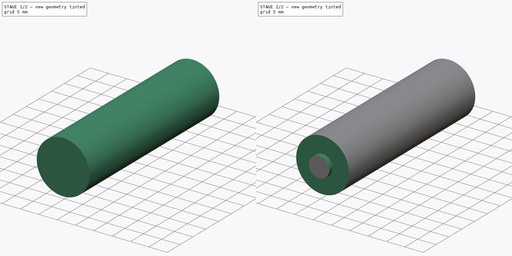
[diagram: build sequence overview — one tinted view per stage of 2, left to right]
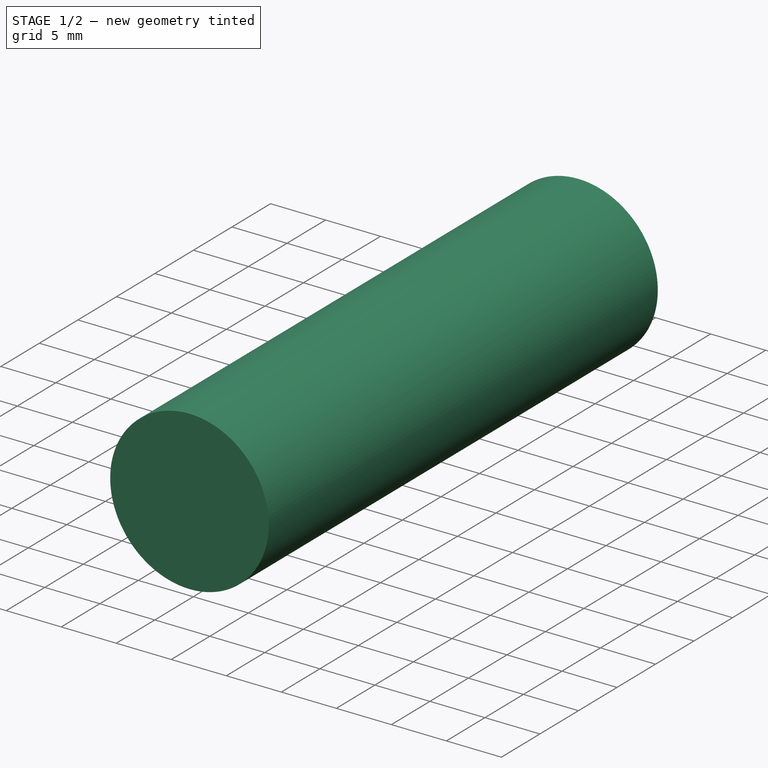
[diagram: stage 1 of 2 — iso view after this stage's code; geometry added in this stage tinted green]
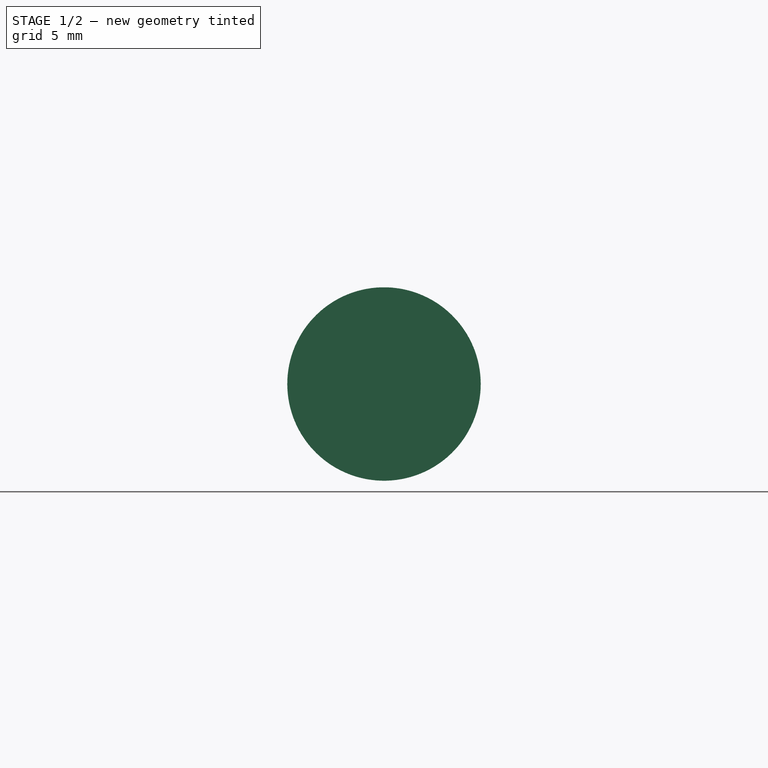
[diagram: stage 1 of 2 — front view after this stage's code; geometry added in this stage tinted green]
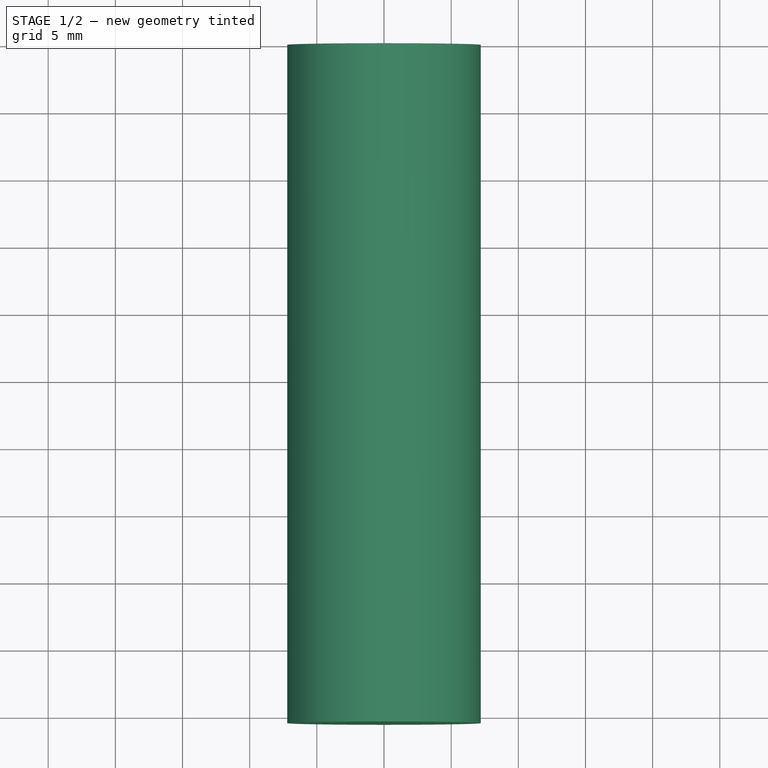
[diagram: stage 1 of 2 — top view after this stage's code; geometry added in this stage tinted green]
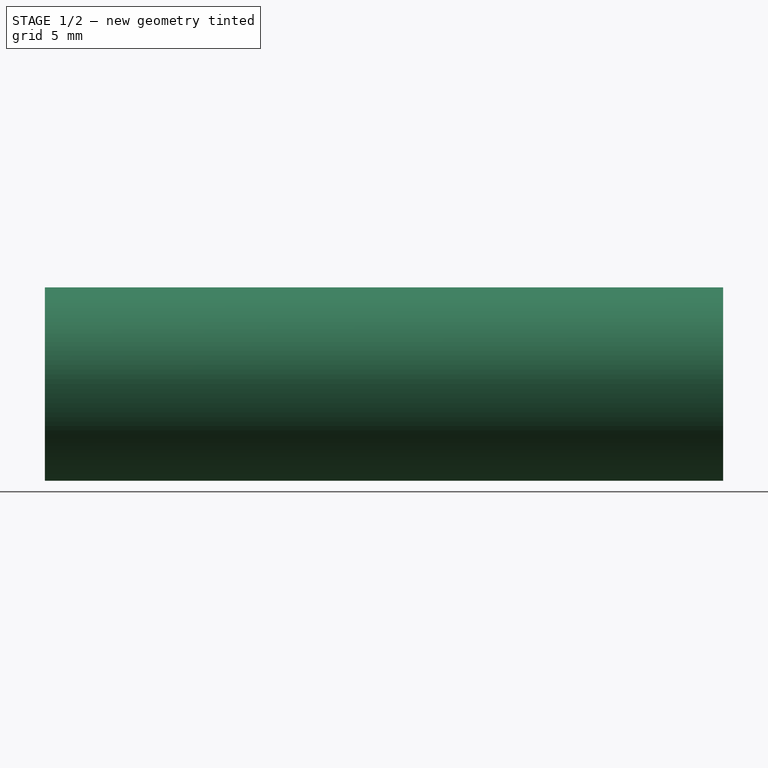
[diagram: stage 1 of 2 — right view after this stage's code; geometry added in this stage tinted green]
FCSTD DOCUMENT  (FreeCAD 0.21R33668 +26 (Git))
Label: AA Battery Tower
License: All rights reserved
LicenseURL: http://en.wikipedia.org/wiki/All_rights_reserved
objects: Sketcher::SketchObject×3, PartDesign::Body×2, PartDesign::Pad×1, PartDesign::Pocket×1, PartDesign::ShapeBinder×1
note: 10 computed .brp shape members not serialized (recipe doc carries the construction recipe); baked Part::Feature solids carry a one-line shape summary decoded from their .brp

FEATURE [Sketcher::SketchObject] Sketch
  FullyConstrained = true
  MapMode = 5
  Placement = pos=(0,0,0) rot=(1,0,0;1.5708rad)
  Support = -> [XZ_Plane]
  sketch-geometry (1):
    g0: Circle CenterX=0 CenterY=0 CenterZ=0 NormalX=0 NormalY=0 NormalZ=1 AngleXU=0 Radius=7.2
  constraints (2):
    c: Coincident(g0,g-1)
    c: Diameter(g0) = 14.4
FEATURE [PartDesign::Pad] Pad
  Direction = (0,-1,2e-16)
  Length = 50.5
  Length2 = 10
  Placement = pos=(0,0,0) rot=(1,0,0;1.5708rad)
  Profile = -> Sketch
  ReferenceAxis = -> Sketch [N_Axis]
  Type = 0
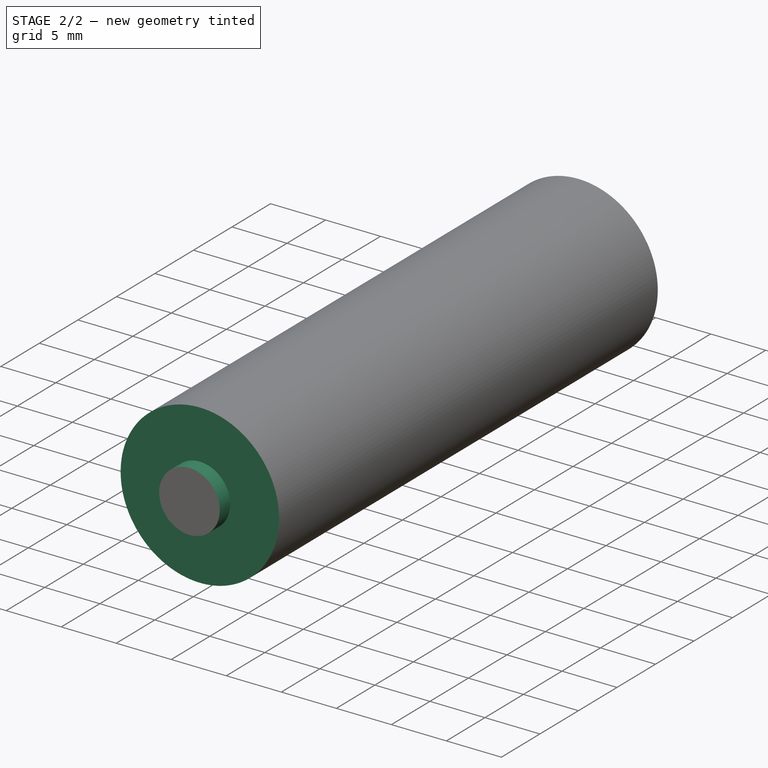
[diagram: stage 2 of 2 — iso view after this stage's code; geometry added in this stage tinted green]
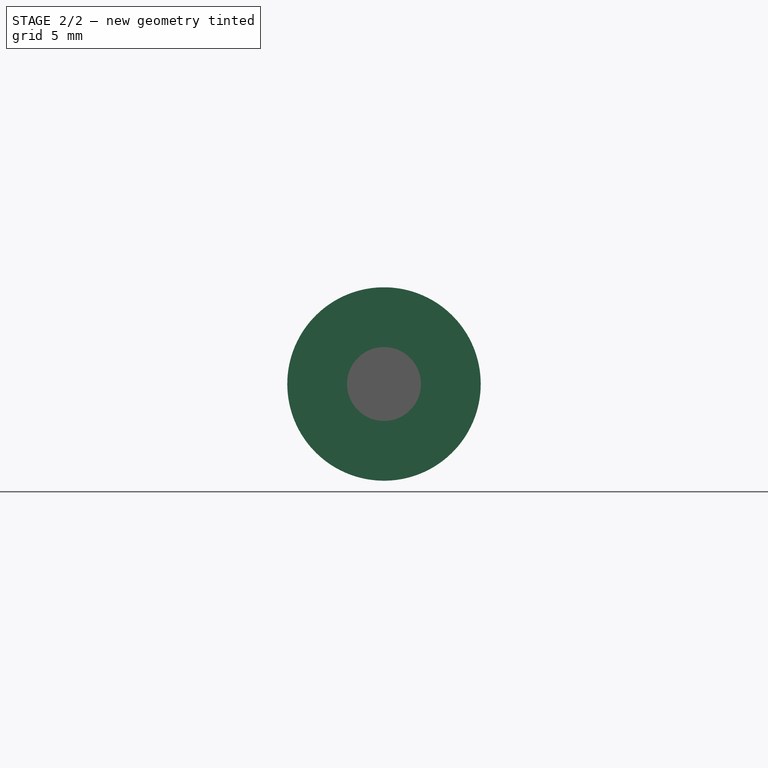
[diagram: stage 2 of 2 — front view after this stage's code; geometry added in this stage tinted green]
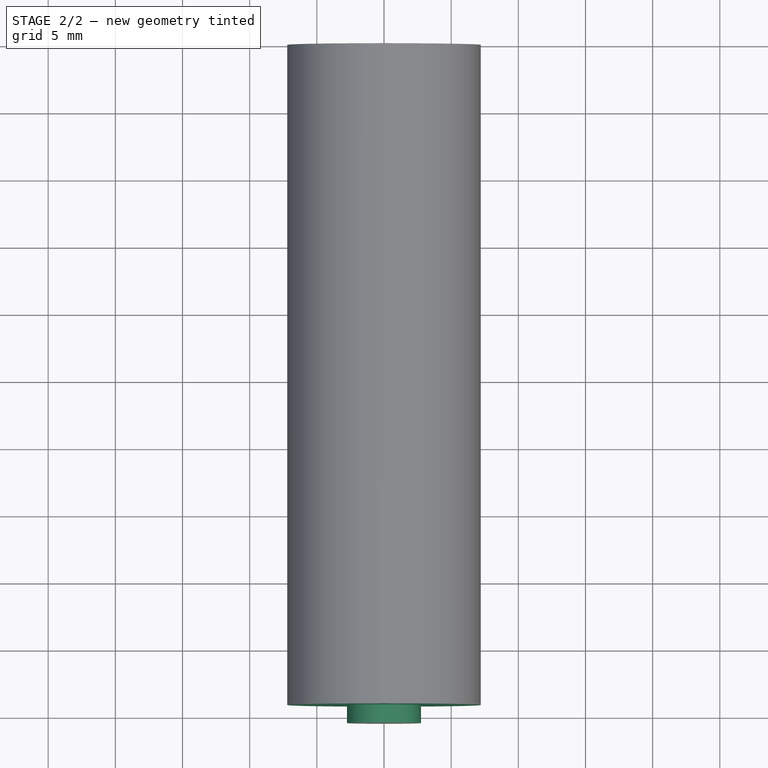
[diagram: stage 2 of 2 — top view after this stage's code; geometry added in this stage tinted green]
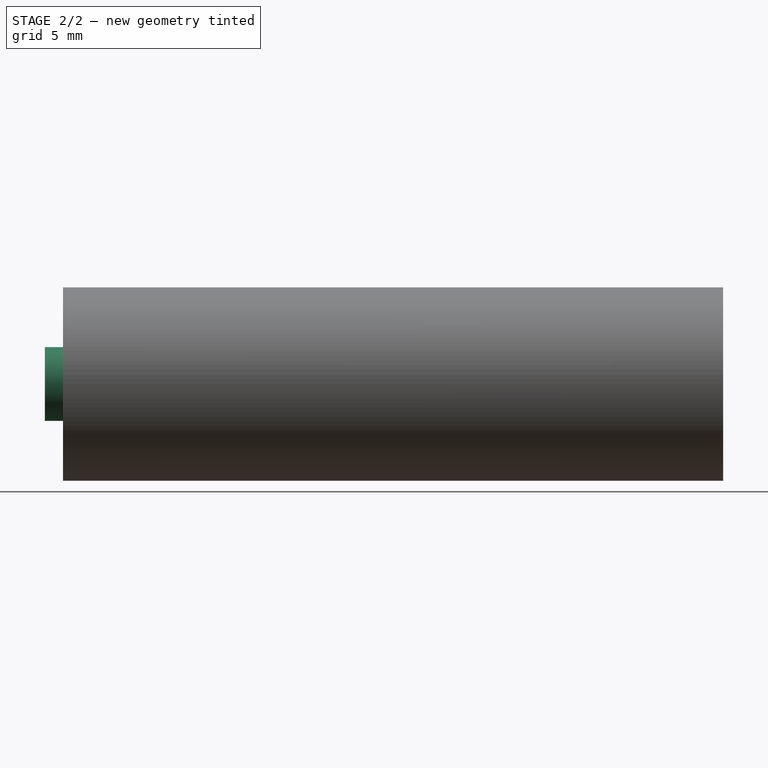
[diagram: stage 2 of 2 — right view after this stage's code; geometry added in this stage tinted green]
FEATURE [Sketcher::SketchObject] Sketch001
  ExternalGeometry = -> [Pad]
  FullyConstrained = true
  MapMode = 5
  Placement = pos=(0,-50.5,1.12e-14) rot=(1,0,0;1.5708rad)
  Support = -> [Pad]
  sketch-geometry (2):
    g0: Circle CenterX=0 CenterY=0 CenterZ=0 NormalX=0 NormalY=0 NormalZ=1 AngleXU=0 Radius=7.2
    g1: Circle CenterX=0 CenterY=0 CenterZ=0 NormalX=0 NormalY=0 NormalZ=1 AngleXU=0 Radius=2.75
  constraints (4):
    c: Coincident(g0,g-3)
    c: Coincident(g1,g0)
    c: Equal(g-3,g0)
    c: Diameter(g1) = 5.5
FEATURE [PartDesign::Pocket] Pocket
  BaseFeature = -> Pad
  Direction = (0,1,-2e-16)
  Length = 1.35
  Length2 = 5
  Placement = pos=(0,0,0) rot=(1,0,0;1.5708rad)
  Profile = -> Sketch001
  ReferenceAxis = -> Sketch001 [N_Axis]
  Type = 0
FEATURE [PartDesign::Body] Body  label="AA Battery"
  Group = -> [Sketch,Pad,Sketch001,Pocket]
  Origin = -> Origin
  Tip = -> Pocket
FEATURE [PartDesign::ShapeBinder] ShapeBinder
  Placement = pos=(0,1.35,-3e-16) rot=(0,0,1;0rad)
  Support = -> [Pocket]
  TraceSupport = false
FEATURE [Sketcher::SketchObject] Sketch002
  ExternalGeometry = -> [ShapeBinder]
  FullyConstrained = false
  MapMode = 5
  Placement = pos=(0,0,0) rot=(1,0,0;1.5708rad)
  Support = -> [XZ_Plane001]
  sketch-geometry (16):
    g0: ArcOfCircle CenterX=0 CenterY=0 CenterZ=0 NormalX=0 NormalY=0 NormalZ=1 AngleXU=0 Radius=7.2 StartAngle=4.71239 EndAngle=6.28319
    g1: LineSegment StartX=7.2 StartY=-1.8e-15 StartZ=0 EndX=9.2 EndY=-1.8e-15 EndZ=0
    g2: LineSegment StartX=9.2 StartY=-1.8e-15 StartZ=0 EndX=9.2 EndY=-9.2 EndZ=0
    g3: LineSegment StartX=0 StartY=-7.2 StartZ=0 EndX=0 EndY=-9.2 EndZ=0
    g4: LineSegment StartX=0 StartY=-9.2 StartZ=0 EndX=9.2 EndY=-9.2 EndZ=0
    g5: LineSegment StartX=0 StartY=-7.2 StartZ=0 EndX=-51.7391 EndY=-6.2 EndZ=0
    g6: LineSegment StartX=0 StartY=-9.2 StartZ=0 EndX=-60.8 EndY=-9.2 EndZ=0
    g7: LineSegment StartX=-60.8 StartY=-9.2 StartZ=0 EndX=-60.8 EndY=21.9882 EndZ=0
    g8: LineSegment StartX=-58.8 StartY=-6.2 StartZ=0 EndX=-60.8 EndY=-6.2 EndZ=0
    g9: LineSegment StartX=0 StartY=-7.2 StartZ=0 EndX=-60.8 EndY=-7.2 EndZ=0
    g10: LineSegment StartX=-58.8 StartY=-6.2 StartZ=0 EndX=-58.8 EndY=-7.2 EndZ=0
    g11: ArcOfCircle CenterX=-51.6 CenterY=0.998656 CenterZ=0 NormalX=0 NormalY=0 NormalZ=1 AngleXU=0 Radius=7.2 StartAngle=3.14159 EndAngle=4.69306
    g12: LineSegment StartX=-58.8 StartY=-6.2 StartZ=0 EndX=-58.8 EndY=0.998685 EndZ=0
    g13: LineSegment StartX=-58.8 StartY=-6.2 StartZ=0 EndX=-51.7391 EndY=-6.2 EndZ=0
    g14: LineSegment StartX=-58.8 StartY=0.998685 StartZ=0 EndX=-58.8 EndY=25.9987 EndZ=0
    g15: Circle CenterX=-51.6 CenterY=0.998656 CenterZ=0 NormalX=0 NormalY=0 NormalZ=1 AngleXU=0 Radius=7.2
  constraints (45):
    c: Coincident(g0,g-3)
    c: PointOnObject(g0,g-3)
    c: Coincident(g1,g0)
    c: Horizontal(g1)
    c: Coincident(g2,g1)
    c: Vertical(g2)
    c: Coincident(g3,g0)
    c: Vertical(g3)
    c: Coincident(g4,g3)
    c: Horizontal(g4)
    c: Coincident(g2,g4)
    c: Perpendicular(g-3,g1)
    c: Perpendicular(g-3,g3)
    c: Coincident(g5,g0)
    c: Coincident(g6,g3)
    c: Horizontal(g6)
    c: Distance(g6,g2) = 70
    c: Coincident(g7,g6)
    c: Vertical(g7)
    c: PointOnObject(g8,g7)
    c: Horizontal(g8)
    c: Coincident(g9,g0)
    c: PointOnObject(g9,g7)
    c: Horizontal(g9)
    c: PointOnObject(g10,g9)
    c: Vertical(g10)
    c: Coincident(g12,g11)
    c: Tangent(g12,g11)
    c: Vertical(g12)
    c: Equal(g11,g-3)
    c: Coincident(g13,g8)
    c: Coincident(g13,g11)
    c: Horizontal(g13)
    c: Tangent(g5,g11) = 1.5708
    c: Coincident(g12,g8)
    c: Coincident(g8,g10)
    c: Coincident(g14,g11)
    c: Vertical(g14)
    c: Equal(g1,g3)
    c: Distance(g1) = 2
    c: Equal(g3,g8)
    c: Distance(g10) = 1
    c: Distance(g14) = 25
    c: Coincident(g15,g11)
    c: Equal(g11,g15)
FEATURE [PartDesign::Body] Body001  label="Body"
  Group = -> [Sketch002,ShapeBinder]
  Origin = -> Origin001
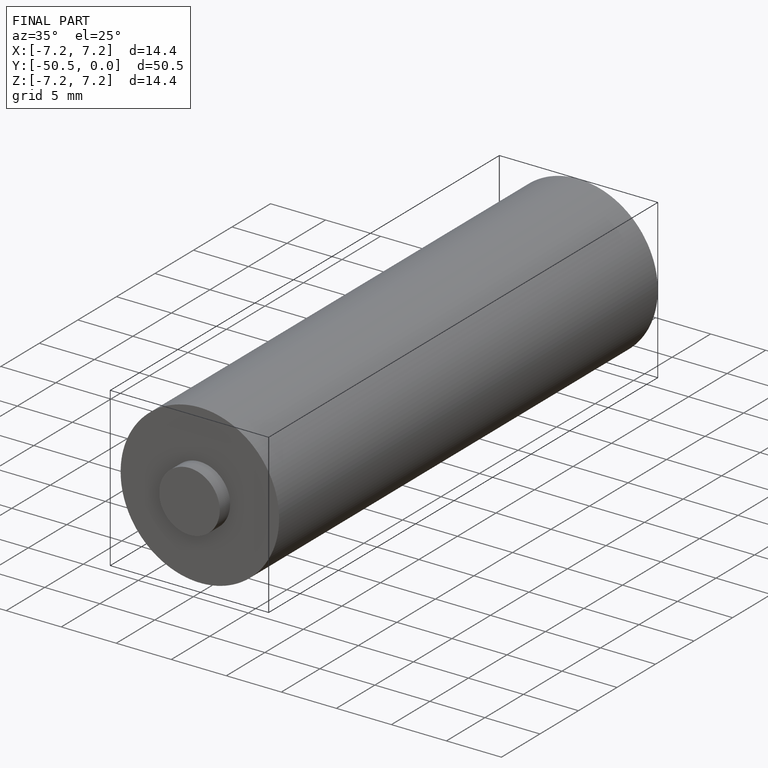
[diagram: finished part — iso view with bounding-box wireframe]
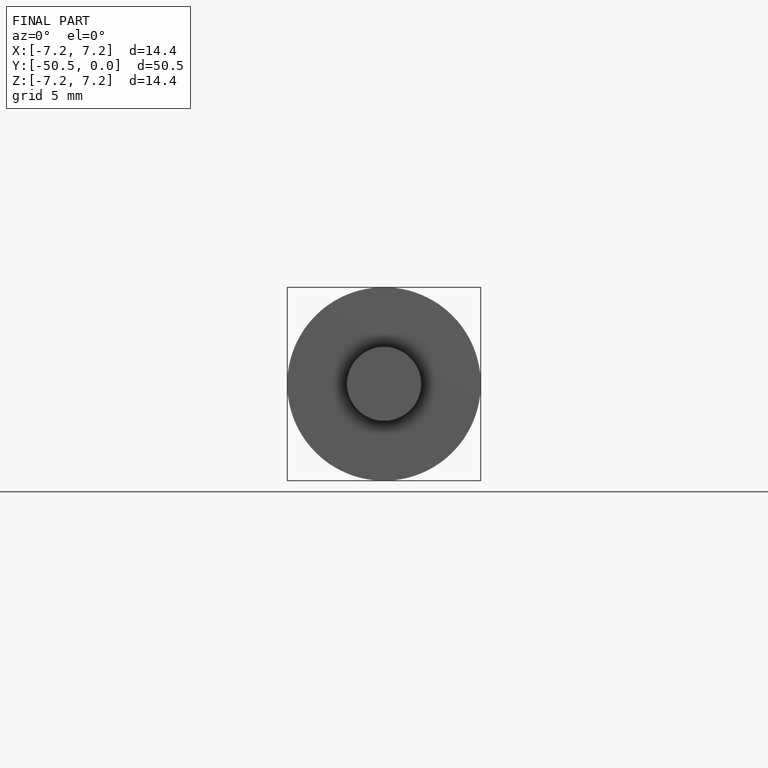
[diagram: finished part — front view with bounding-box wireframe]
